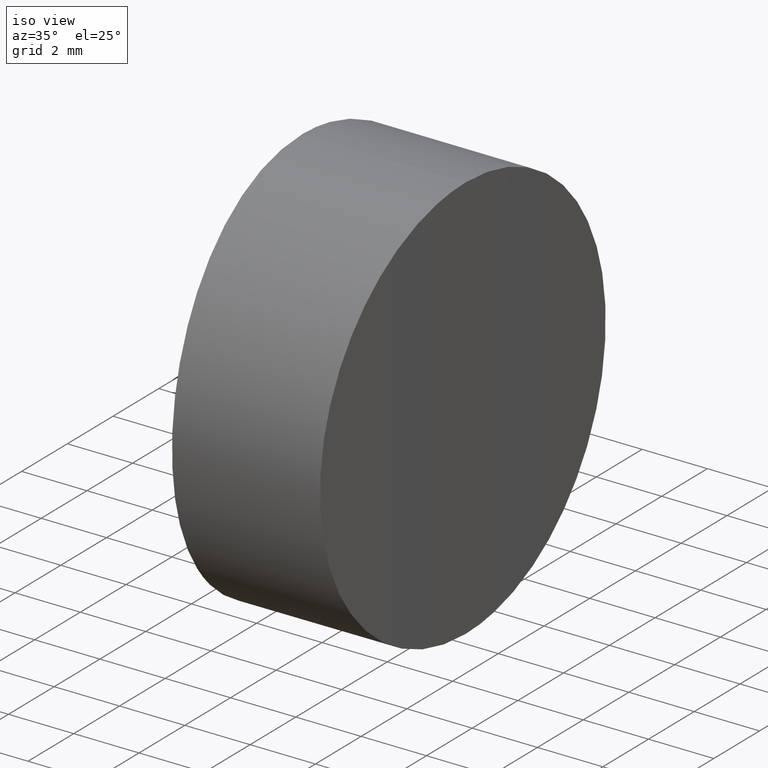
[diagram: clean part render]
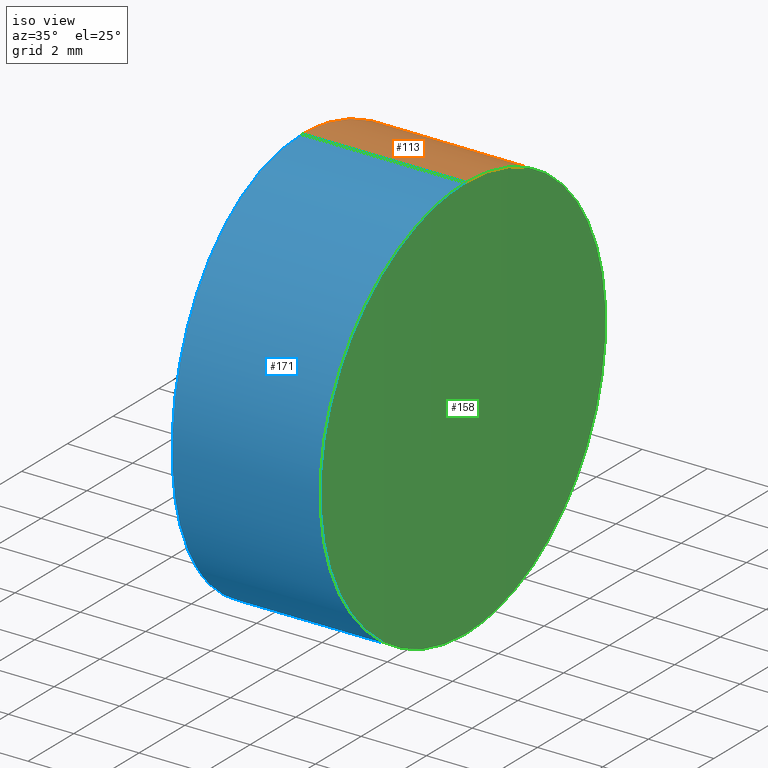
[diagram: same view with three faces highlighted in distinct colors, each labeled with its STEP entity id]
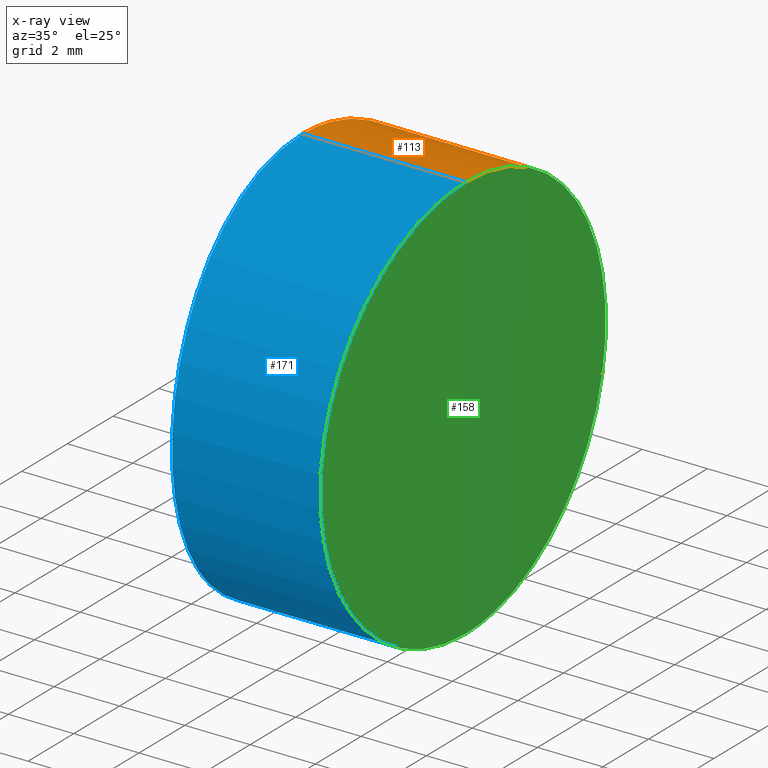
[diagram: x-ray of the same camera — body ghosted, the three highlighted faces saturated]
A machine part, iso view with three faces highlighted in distinct colors.
The next image is the same camera in x-ray (body ghosted, the three faces saturated) — at least one of them is partly hidden behind the body in this view.
Their STEP definitions:

[orange] entity #113 — the highlighted cylindrical surface (partial cylindrical patch) has radius 6.25 mm, axis along (1, -0, -0).
#1 = CARTESIAN_POINT ( 'NONE',  ( 0.1066242266087137763, 3.307313012296388965, 11.55719636348113077 ) ) ;
#3 = CARTESIAN_POINT ( 'NONE',  ( 0.2756230888346870578, 5.307215534080795827, 2.942717741193483061 ) ) ;
#5 = CARTESIAN_POINT ( 'NONE',  ( 0.09461288183620197856, 3.130022284793113840, 0.8248748829874287258 ) ) ;
#6 = B_SPLINE_CURVE_WITH_KNOTS ( 'NONE', 3,
 ( #297, #162, #86, #267, #28, #142, #164, #114, #89, #139, #118, #145, #137, #200, #65, #167, #34, #144, #248, #225, #324, #92, #202, #206, #179, #154, #260, #123, #226, #78, #329, #181, #73, #147, #183, #98, #303, #69, #121, #278, #174, #11 ),
 .UNSPECIFIED., .F., .F.,
 ( 4, 2, 2, 2, 2, 2, 2, 2, 2, 2, 2, 2, 2, 2, 2, 2, 2, 2, 2, 2, 4 ),
 ( 0.000000000000000000, 0.001220495343383211015, 0.001830743015074817173, 0.002440990686766424198, 0.003661486030149641285, 0.004881981373532858805, 0.006102476716916076759, 0.006712724388607684868, 0.007322972060299292978, 0.008543467403682506595, 0.009763962747065724548, 0.01098445809044894250, 0.01159470576214055408, 0.01220495343383216219, 0.01342544877721538188, 0.01464594412059859810, 0.01586643946398181432, 0.01647668713567342416, 0.01708693480736503401, 0.01830743015074825369, 0.01952792549413146991 ),
 .UNSPECIFIED. ) ;
#8 = CARTESIAN_POINT ( 'NONE',  ( 0.1659949999802520504, 4.130033944562728543, 1.541388618476130734 ) ) ;
#10 = CARTESIAN_POINT ( 'NONE',  ( 0.3435147001095088526, 5.921854594423098916, 8.259033701158632113 ) ) ;
#11 = CARTESIAN_POINT ( 'NONE',  ( 4.999999999999976907, -5.204170427930421283E-15, 0.000000000000000000 ) ) ;
#16 = CARTESIAN_POINT ( 'NONE',  ( 8.396108210539845323E-15, 0.4130860730014412896, 2.286988957586610915E-16 ) ) ;
#21 = DIRECTION ( 'NONE',  ( 1.000000000000000000, -0.000000000000000000, -0.000000000000000000 ) ) ;
#24 = CARTESIAN_POINT ( 'NONE',  ( -6.250000000000000000, -5.204170427930421283E-15, 0.000000000000000000 ) ) ;
#28 = CARTESIAN_POINT ( 'NONE',  ( 4.994312911263909527, 1.615180947793990685, 12.29116909028458871 ) ) ;
#30 = CARTESIAN_POINT ( 'NONE',  ( 6.938893903907228378E-15, -4.438766178463325818E-15, 12.50000000000000000 ) ) ;
#31 = CARTESIAN_POINT ( 'NONE',  ( 6.903106761885734188E-15, 0.4130948591030989547, 12.50000000000000000 ) ) ;
#34 = CARTESIAN_POINT ( 'NONE',  ( 4.928264171054427933, 5.694090668111175368, 8.834802782166205404 ) ) ;
#37 = CARTESIAN_POINT ( 'NONE',  ( 0.2158616995286678220, 4.705899044569926026, 2.116875793328691024 ) ) ;
#45 = CARTESIAN_POINT ( 'NONE',  ( -6.250000000000000000, -4.438766178463325818E-15, 12.50000000000000000 ) ) ;
#48 = LINE ( 'NONE', #24, #187 ) ;
#58 = CARTESIAN_POINT ( 'NONE',  ( 0.02432879407562086108, 1.629218021449487130, 12.29795529044067770 ) ) ;
#60 = CARTESIAN_POINT ( 'NONE',  ( 0.004996378150281480073, 0.8215182583297070407, 12.45944621587272749 ) ) ;
#61 = CARTESIAN_POINT ( 'NONE',  ( 0.07364198196778676264, 2.771339476991844908, 0.6330817902046858014 ) ) ;
#63 = AXIS2_PLACEMENT_3D ( 'NONE', #261, #131, #182 ) ;
#64 = VERTEX_POINT ( 'NONE', #214 ) ;
#65 = CARTESIAN_POINT ( 'NONE',  ( 4.935157842332336564, 5.413979064581503131, 9.379397633801435319 ) ) ;
#67 = CARTESIAN_POINT ( 'NONE',  ( 0.2406871432519115117, 4.964473700835698722, 2.430954107092948568 ) ) ;
#68 = ORIENTED_EDGE ( 'NONE', *, *, #271, .T. ) ;
#69 = CARTESIAN_POINT ( 'NONE',  ( 4.991272804248763961, 2.021246492789514626, 0.3218840884410356651 ) ) ;
#72 = ORIENTED_EDGE ( 'NONE', *, *, #247, .T. ) ;
#73 = CARTESIAN_POINT ( 'NONE',  ( 4.967991578292927812, 3.818635297595525113, 1.285205943275607332 ) ) ;
#78 = CARTESIAN_POINT ( 'NONE',  ( 4.945394163859600845, 4.972726870806078558, 2.441968622538004841 ) ) ;
#84 = CARTESIAN_POINT ( 'NONE',  ( 0.01925563739358743254, 1.418344335848754856, 0.1596582932657253373 ) ) ;
#86 = CARTESIAN_POINT ( 'NONE',  ( 4.998870321460144872, 0.8184852456806561705, 12.45952607707375037 ) ) ;
#88 = CARTESIAN_POINT ( 'NONE',  ( 0.2161145303124739070, 4.708626108805606059, 10.38001662973962347 ) ) ;
#89 = CARTESIAN_POINT ( 'NONE',  ( 4.978592816343738292, 3.128907451267059603, 11.67577679866833229 ) ) ;
#90 = B_SPLINE_CURVE_WITH_KNOTS ( 'NONE', 3,
 ( #257, #16, #219, #84, #250, #198, #242, #61, #5, #109, #8, #37, #67, #3, #222, #316, #246, #244, #111, #298, #318, #193, #322, #294, #270, #10, #217, #221, #292, #170, #88, #274, #165, #1, #276, #321, #269, #296, #58, #60, #31, #30 ),
 .UNSPECIFIED., .F., .F.,
 ( 4, 2, 2, 2, 2, 2, 2, 2, 2, 2, 2, 2, 2, 2, 2, 2, 2, 2, 2, 2, 4 ),
 ( 0.009772590515803970118, 0.01099418371872236920, 0.01160498032018156961, 0.01221577692164076828, 0.01343737012455916910, 0.01465896332747756818, 0.01588055653039596726, 0.01649135313185516941, 0.01710214973331437155, 0.01832374293623276890, 0.01954533613915116624, 0.02076692934206956706, 0.02137772594352876573, 0.02198852254498796788, 0.02321011574790636522, 0.02443170895082476257, 0.02565330215374315645, 0.02626409875520235165, 0.02687489535666155380, 0.02809648855957994421, 0.02931808176249833461 ),
 .UNSPECIFIED. ) ;
#92 = CARTESIAN_POINT ( 'NONE',  ( 4.913554362401714393, 6.249999801652589504, 5.837306449244182183 ) ) ;
#96 = EDGE_CURVE ( 'NONE', #299, #148, #48, .T. ) ;
#98 = CARTESIAN_POINT ( 'NONE',  ( 4.983107966137360734, 2.768887129736028907, 0.6430790198273201863 ) ) ;
#109 = CARTESIAN_POINT ( 'NONE',  ( 0.1407103015664853685, 3.808869837697208549, 1.277924719191933622 ) ) ;
#111 = CARTESIAN_POINT ( 'NONE',  ( 0.3583252059185200733, 6.047965350123804207, 4.620818497219325138 ) ) ;
#113 = ADVANCED_FACE ( 'NONE', ( #235 ), #285, .T. ) ;
#114 = CARTESIAN_POINT ( 'NONE',  ( 4.983338064218809649, 2.770082067020261274, 11.86754252863650727 ) ) ;
#117 = EDGE_LOOP ( 'NONE', ( #68, #72, #323, #251 ) ) ;
#118 = CARTESIAN_POINT ( 'NONE',  ( 4.962448123180664972, 4.129606337793049420, 10.95902267144817799 ) ) ;
#121 = CARTESIAN_POINT ( 'NONE',  ( 4.994494165141708741, 1.628304896793462353, 0.2018089264395082350 ) ) ;
#123 = CARTESIAN_POINT ( 'NONE',  ( 4.930221524088732821, 5.617541983827674557, 3.479916868136211150 ) ) ;
#131 = DIRECTION ( 'NONE',  ( 1.000000000000000000, -0.000000000000000000, -0.000000000000000000 ) ) ;
#137 = CARTESIAN_POINT ( 'NONE',  ( 4.945570605464026492, 4.964794413388972316, 10.06863486021563325 ) ) ;
#139 = CARTESIAN_POINT ( 'NONE',  ( 4.968168014237253516, 3.808031038586171313, 11.22272715084252503 ) ) ;
#142 = CARTESIAN_POINT ( 'NONE',  ( 4.991167085856591079, 2.007623238512298514, 12.17232913672585326 ) ) ;
#144 = CARTESIAN_POINT ( 'NONE',  ( 4.922284610285358575, 5.928116489745591799, 8.271244844511970840 ) ) ;
#145 = CARTESIAN_POINT ( 'NONE',  ( 4.951176064800415944, 4.706080574903221070, 10.38295882484594834 ) ) ;
#147 = CARTESIAN_POINT ( 'NONE',  ( 4.975869092026910856, 3.306772038843531103, 0.9424654901211730884 ) ) ;
#148 = VERTEX_POINT ( 'NONE', #241 ) ;
#151 = DIRECTION ( 'NONE',  ( 1.000000000000000000, -0.000000000000000000, -0.000000000000000000 ) ) ;
#154 = CARTESIAN_POINT ( 'NONE',  ( 4.922390331407126673, 5.922328576549611867, 4.242375121257233594 ) ) ;
#162 = CARTESIAN_POINT ( 'NONE',  ( 4.999999999999978684, 0.4126908298085416593, 12.50000000000000533 ) ) ;
#164 = CARTESIAN_POINT ( 'NONE',  ( 4.989343907147685719, 2.202677942603155525, 12.10257375527523038 ) ) ;
#165 = CARTESIAN_POINT ( 'NONE',  ( 0.1414606555378821184, 3.819074287584192096, 11.21445183210819252 ) ) ;
#167 = CARTESIAN_POINT ( 'NONE',  ( 4.930451601935490480, 5.606921548160235247, 9.018885988072691262 ) ) ;
#170 = CARTESIAN_POINT ( 'NONE',  ( 0.2414378568059281638, 4.972083966201013006, 10.05885776642674045 ) ) ;
#174 = CARTESIAN_POINT ( 'NONE',  ( 4.999999999999976907, 0.4126903295097839597, 1.694065894508600678E-18 ) ) ;
#179 = CARTESIAN_POINT ( 'NONE',  ( 4.919243503464356237, 6.041168576902768095, 4.634817147253716740 ) ) ;
#181 = CARTESIAN_POINT ( 'NONE',  ( 4.962386557923943897, 4.132959056135149467, 1.543919649840882036 ) ) ;
#182 = DIRECTION ( 'NONE',  ( 0.000000000000000000, 0.000000000000000000, -1.000000000000000000 ) ) ;
#183 = CARTESIAN_POINT ( 'NONE',  ( 4.978402725925540118, 3.129398536766045513, 0.8360214616970526036 ) ) ;
#187 = VECTOR ( 'NONE', #21, 1000.000000000000000 ) ;
#191 = LINE ( 'NONE', #45, #340 ) ;
#193 = CARTESIAN_POINT ( 'NONE',  ( 0.3828257305944149369, 6.249996462997929214, 6.663134976473110704 ) ) ;
#196 = CARTESIAN_POINT ( 'NONE',  ( 6.938893903907228378E-15, -4.438766178463325818E-15, 12.50000000000000000 ) ) ;
#198 = CARTESIAN_POINT ( 'NONE',  ( 0.03904567890450407613, 2.009010248410231014, 0.3281373339105386200 ) ) ;
#200 = CARTESIAN_POINT ( 'NONE',  ( 4.937691939819520037, 5.307535004852429239, 9.556771251989504279 ) ) ;
#202 = CARTESIAN_POINT ( 'NONE',  ( 4.914684491936140986, 6.209525738619205093, 5.431512309540782901 ) ) ;
#206 = CARTESIAN_POINT ( 'NONE',  ( 4.917912088856221331, 6.090590020503744206, 4.832741660231952174 ) ) ;
#214 = CARTESIAN_POINT ( 'NONE',  ( 4.999999999999976907, -4.438766178463325818E-15, 12.50000000000000000 ) ) ;
#217 = CARTESIAN_POINT ( 'NONE',  ( 0.3354098215465760591, 5.852042039911806270, 8.454087184780481934 ) ) ;
#219 = CARTESIAN_POINT ( 'NONE',  ( 0.004993865505923499384, 0.8191965438438407743, 0.04055009990102494133 ) ) ;
#221 = CARTESIAN_POINT ( 'NONE',  ( 0.3087302805166089459, 5.616914490567282314, 9.021345706636067163 ) ) ;
#222 = CARTESIAN_POINT ( 'NONE',  ( 0.2868520252281807625, 5.413548494469582195, 3.119867796118644065 ) ) ;
#225 = CARTESIAN_POINT ( 'NONE',  ( 4.914685092766309715, 6.209521597560024198, 7.070873815965509124 ) ) ;
#226 = CARTESIAN_POINT ( 'NONE',  ( 4.934967835242724199, 5.425776315718195519, 3.121091743888389836 ) ) ;
#235 = FACE_OUTER_BOUND ( 'NONE', #117, .T. ) ;
#241 = CARTESIAN_POINT ( 'NONE',  ( 4.999999999999976907, -5.204170427930421283E-15, 0.000000000000000000 ) ) ;
#242 = CARTESIAN_POINT ( 'NONE',  ( 0.04710311789368159391, 2.204068077948130533, 0.3979506089032429639 ) ) ;
#244 = CARTESIAN_POINT ( 'NONE',  ( 0.3439857475047795043, 5.927677961578650567, 4.227481124889505004 ) ) ;
#246 = CARTESIAN_POINT ( 'NONE',  ( 0.3174314458988569676, 5.693569526573183381, 3.664051779294871025 ) ) ;
#247 = EDGE_CURVE ( 'NONE', #279, #64, #191, .T. ) ;
#248 = CARTESIAN_POINT ( 'NONE',  ( 4.919062171212663870, 6.048191613798122646, 7.878302949418277024 ) ) ;
#250 = CARTESIAN_POINT ( 'NONE',  ( 0.02513886438214826824, 1.616378308867187252, 0.2091473468669028668 ) ) ;
#251 = ORIENTED_EDGE ( 'NONE', *, *, #96, .F. ) ;
#257 = CARTESIAN_POINT ( 'NONE',  ( 8.437697195808742108E-15, -1.876419484709403194E-31, 2.253504557900801592E-16 ) ) ;
#260 = CARTESIAN_POINT ( 'NONE',  ( 4.924214057264491906, 5.852573187952857303, 4.047320562580419612 ) ) ;
#261 = CARTESIAN_POINT ( 'NONE',  ( -6.250000000000000000, -5.204170427930421283E-15, 6.250000000000000000 ) ) ;
#267 = CARTESIAN_POINT ( 'NONE',  ( 4.995643869074143595, 1.417256300933740665, 12.34059049906308481 ) ) ;
#269 = CARTESIAN_POINT ( 'NONE',  ( 0.06498901591306473213, 2.585981678114223747, 11.94355432397715333 ) ) ;
#270 = CARTESIAN_POINT ( 'NONE',  ( 0.3575085436868826738, 6.040844418379501590, 7.866408662069813928 ) ) ;
#271 = EDGE_CURVE ( 'NONE', #299, #279, #90, .T. ) ;
#274 = CARTESIAN_POINT ( 'NONE',  ( 0.1662482354401662032, 4.133149032654069188, 10.95587677997653842 ) ) ;
#276 = CARTESIAN_POINT ( 'NONE',  ( 0.09543534670040763890, 3.130163720355512158, 11.66353026635727907 ) ) ;
#278 = CARTESIAN_POINT ( 'NONE',  ( 4.998869702809473736, 0.8208762813264807168, 0.04047874389868940520 ) ) ;
#279 = VERTEX_POINT ( 'NONE', #196 ) ;
#285 = CYLINDRICAL_SURFACE ( 'NONE', #63, 6.250000000000000000 ) ;
#292 = CARTESIAN_POINT ( 'NONE',  ( 0.2876673644522193540, 5.425125331843909215, 9.380021019994593701 ) ) ;
#294 = CARTESIAN_POINT ( 'NONE',  ( 0.3634314432637512637, 6.090333757436789952, 7.668378039041986227 ) ) ;
#295 = EDGE_CURVE ( 'NONE', #64, #148, #6, .T. ) ;
#296 = CARTESIAN_POINT ( 'NONE',  ( 0.03857463754648794013, 2.022554222391584666, 12.17766587587150440 ) ) ;
#297 = CARTESIAN_POINT ( 'NONE',  ( 4.999999999999976907, -4.438766178463325818E-15, 12.50000000000000000 ) ) ;
#298 = CARTESIAN_POINT ( 'NONE',  ( 0.3777915393958307666, 6.209452250963997777, 5.428525722679617971 ) ) ;
#299 = VERTEX_POINT ( 'NONE', #309 ) ;
#303 = CARTESIAN_POINT ( 'NONE',  ( 4.985294858695423770, 2.584804047125940141, 0.5559099103250521035 ) ) ;
#309 = CARTESIAN_POINT ( 'NONE',  ( 8.437697195808742108E-15, -1.876419484709403194E-31, 2.253504557900801592E-16 ) ) ;
#316 = CARTESIAN_POINT ( 'NONE',  ( 0.3077233275802382373, 5.606401388316044176, 3.480072493938341172 ) ) ;
#318 = CARTESIAN_POINT ( 'NONE',  ( 0.3828266003980840271, 6.250003536543892402, 5.836972047603499192 ) ) ;
#321 = CARTESIAN_POINT ( 'NONE',  ( 0.07465054315369566706, 2.769960385778523992, 11.85638513859098531 ) ) ;
#322 = CARTESIAN_POINT ( 'NONE',  ( 0.3777926432282701641, 6.209443801628244941, 7.069239787158606347 ) ) ;
#323 = ORIENTED_EDGE ( 'NONE', *, *, #295, .T. ) ;
#324 = CARTESIAN_POINT ( 'NONE',  ( 4.913554351426040689, 6.250000198345957436, 6.662687543025433534 ) ) ;
#329 = CARTESIAN_POINT ( 'NONE',  ( 4.951114503380253495, 4.709022543001965211, 2.120393540379105435 ) ) ;
#340 = VECTOR ( 'NONE', #151, 1000.000000000000000 ) ;

[blue] entity #171 — the highlighted cylindrical surface (partial cylindrical patch) has radius 6.25 mm, axis along (1, -0, -0).
#13 = CARTESIAN_POINT ( 'NONE',  ( 6.938893903907228378E-15, -4.438766178463325818E-15, 12.50000000000000000 ) ) ;
#15 = CARTESIAN_POINT ( 'NONE',  ( 0.3828257305944106070, -6.249996462997938096, 5.836865023526897289 ) ) ;
#17 = CARTESIAN_POINT ( 'NONE',  ( 0.004996378150280787918, -0.8215182583297128138, 0.04055378412727692061 ) ) ;
#21 = DIRECTION ( 'NONE',  ( 1.000000000000000000, -0.000000000000000000, -0.000000000000000000 ) ) ;
#24 = CARTESIAN_POINT ( 'NONE',  ( -6.250000000000000000, -5.204170427930421283E-15, 0.000000000000000000 ) ) ;
#26 = CARTESIAN_POINT ( 'NONE',  ( 4.998869702809474624, -0.8208762813264977032, 12.45952125610130956 ) ) ;
#33 = ORIENTED_EDGE ( 'NONE', *, *, #62, .T. ) ;
#36 = CARTESIAN_POINT ( 'NONE',  ( 4.998870321460145760, -0.8184852456806678278, 0.04047392292625148075 ) ) ;
#38 = CARTESIAN_POINT ( 'NONE',  ( 0.07364198196778566630, -2.771339476991847572, 11.86691820979531542 ) ) ;
#39 = CARTESIAN_POINT ( 'NONE',  ( 4.983338064218810537, -2.770082067020272376, 0.6324574713634916190 ) ) ;
#40 = CARTESIAN_POINT ( 'NONE',  ( 0.3575085436868892241, -6.040844418379513137, 4.633591337930192289 ) ) ;
#42 = CARTESIAN_POINT ( 'NONE',  ( 4.999999999999977796, -0.4126908298085510407, -0.000000000000000000 ) ) ;
#43 = CARTESIAN_POINT ( 'NONE',  ( 0.3777915393958323764, -6.209452250964002218, 7.071474277320389135 ) ) ;
#45 = CARTESIAN_POINT ( 'NONE',  ( -6.250000000000000000, -4.438766178463325818E-15, 12.50000000000000000 ) ) ;
#46 = CARTESIAN_POINT ( 'NONE',  ( 0.3777926432282685543, -6.209443801628257376, 5.430760212841397205 ) ) ;
#48 = LINE ( 'NONE', #24, #187 ) ;
#49 = CARTESIAN_POINT ( 'NONE',  ( 0.02513886438214830640, -1.616378308867191915, 12.29085265313310238 ) ) ;
#51 = CARTESIAN_POINT ( 'NONE',  ( 4.935157842332337452, -5.413979064581513789, 3.120602366198563793 ) ) ;
#54 = CARTESIAN_POINT ( 'NONE',  ( -6.250000000000000000, -5.204170427930421283E-15, 6.250000000000000000 ) ) ;
#56 = CARTESIAN_POINT ( 'NONE',  ( 4.978592816343738292, -3.128907451267073814, 0.8242232013316728167 ) ) ;
#62 = EDGE_CURVE ( 'NONE', #148, #64, #141, .T. ) ;
#64 = VERTEX_POINT ( 'NONE', #214 ) ;
#70 = CARTESIAN_POINT ( 'NONE',  ( 4.994312911263909527, -1.615180947794000899, 0.2088309097154160132 ) ) ;
#71 = CARTESIAN_POINT ( 'NONE',  ( 0.01925563739358690171, -1.418344335848756854, 12.34034170673427688 ) ) ;
#75 = CARTESIAN_POINT ( 'NONE',  ( 4.983107966137360734, -2.768887129736037789, 11.85692098017268314 ) ) ;
#76 = CARTESIAN_POINT ( 'NONE',  ( 0.06498901591306401049, -2.585981678114232629, 0.5564456760228483345 ) ) ;
#77 = CARTESIAN_POINT ( 'NONE',  ( 4.999999999999976019, -0.4126913301079149776, 12.49999999999999645 ) ) ;
#80 = CARTESIAN_POINT ( 'NONE',  ( 4.994494165141707853, -1.628304896793477896, 12.29819107356048669 ) ) ;
#91 = ORIENTED_EDGE ( 'NONE', *, *, #96, .T. ) ;
#93 = CARTESIAN_POINT ( 'NONE',  ( 0.1659949999802544374, -4.130033944562727655, 10.95861138152387682 ) ) ;
#95 = CARTESIAN_POINT ( 'NONE',  ( 0.3828266003980797527, -6.250003536543905724, 6.663027952396508802 ) ) ;
#96 = EDGE_CURVE ( 'NONE', #299, #148, #48, .T. ) ;
#97 = CARTESIAN_POINT ( 'NONE',  ( 4.995643869074142707, -1.417256300933751989, 0.1594095009369125016 ) ) ;
#99 = CARTESIAN_POINT ( 'NONE',  ( 0.07465054315369504256, -2.769960385778533318, 0.6436148614090170250 ) ) ;
#100 = CARTESIAN_POINT ( 'NONE',  ( 4.924214057264491018, -5.852573187952867073, 8.452679437419583053 ) ) ;
#101 = CARTESIAN_POINT ( 'NONE',  ( 4.975869092026911744, -3.306772038843542649, 11.55753450987882580 ) ) ;
#103 = CARTESIAN_POINT ( 'NONE',  ( 4.934967835242724199, -5.425776315718203513, 9.378908256111612829 ) ) ;
#105 = CARTESIAN_POINT ( 'NONE',  ( 4.945570605464026492, -4.964794413388983862, 2.431365139784368967 ) ) ;
#107 = CARTESIAN_POINT ( 'NONE',  ( 4.919243503464358902, -6.041168576902777865, 7.865182852746288589 ) ) ;
#119 = CARTESIAN_POINT ( 'NONE',  ( 0.03904567890450411777, -2.009010248410235011, 12.17186266608946177 ) ) ;
#125 = CARTESIAN_POINT ( 'NONE',  ( 0.3439857475047735091, -5.927677961578656785, 8.272518875110504766 ) ) ;
#126 = CARTESIAN_POINT ( 'NONE',  ( 4.951176064800415944, -4.706080574903230840, 2.117041175154053434 ) ) ;
#127 = CARTESIAN_POINT ( 'NONE',  ( 8.466517824280360617E-15, -0.4130772870866644131, 1.135024149320762947E-16 ) ) ;
#133 = DIRECTION ( 'NONE',  ( 0.000000000000000000, 0.000000000000000000, -1.000000000000000000 ) ) ;
#135 = CARTESIAN_POINT ( 'NONE',  ( 4.962386557923943009, -4.132959056135159237, 10.95608035015912129 ) ) ;
#141 = B_SPLINE_CURVE_WITH_KNOTS ( 'NONE', 3,
 ( #229, #42, #36, #97, #70, #207, #249, #39, #56, #259, #153, #126, #105, #233, #51, #263, #334, #314, #332, #213, #265, #342, #308, #180, #107, #287, #100, #156, #103, #211, #216, #135, #160, #101, #312, #75, #337, #310, #80, #26, #77, #185 ),
 .UNSPECIFIED., .F., .F.,
 ( 4, 2, 2, 2, 2, 2, 2, 2, 2, 2, 2, 2, 2, 2, 2, 2, 2, 2, 2, 2, 4 ),
 ( 0.01952792549413146991, 0.02074842231710424464, 0.02135867072859063201, 0.02196891914007701938, 0.02318941596304979758, 0.02440991278602257231, 0.02563040960899534704, 0.02624065802048173440, 0.02685090643196812177, 0.02807140325494089650, 0.02929190007791367123, 0.03051239690088644596, 0.03112264531237283333, 0.03173289372385922763, 0.03295339054683200236, 0.03417388736980478403, 0.03539438419277755876, 0.03600463260426395307, 0.03661488101575034043, 0.03783537783872312210, 0.03905587466169590377 ),
 .UNSPECIFIED. ) ;
#148 = VERTEX_POINT ( 'NONE', #241 ) ;
#149 = CARTESIAN_POINT ( 'NONE',  ( 0.3087302805166077802, -5.616914490567292972, 3.478654293363939498 ) ) ;
#150 = CARTESIAN_POINT ( 'NONE',  ( 0.2161145303124736849, -4.708626108805615829, 2.119983370260377864 ) ) ;
#151 = DIRECTION ( 'NONE',  ( 1.000000000000000000, -0.000000000000000000, -0.000000000000000000 ) ) ;
#152 = CARTESIAN_POINT ( 'NONE',  ( 0.03857463754648707971, -2.022554222391592216, 0.3223341241284934933 ) ) ;
#153 = CARTESIAN_POINT ( 'NONE',  ( 4.962448123180664972, -4.129606337793060966, 1.540977328551825565 ) ) ;
#156 = CARTESIAN_POINT ( 'NONE',  ( 4.930221524088732821, -5.617541983827686103, 9.020083131863790626 ) ) ;
#157 = DIRECTION ( 'NONE',  ( 1.000000000000000000, -0.000000000000000000, -0.000000000000000000 ) ) ;
#160 = CARTESIAN_POINT ( 'NONE',  ( 4.967991578292928700, -3.818635297595535771, 11.21479405672439356 ) ) ;
#171 = ADVANCED_FACE ( 'NONE', ( #188 ), #288, .T. ) ;
#176 = CARTESIAN_POINT ( 'NONE',  ( 0.3583252059185214611, -6.047965350123814865, 7.879181502780681967 ) ) ;
#180 = CARTESIAN_POINT ( 'NONE',  ( 4.917912088856231989, -6.090590020503753976, 7.667258339768050490 ) ) ;
#185 = CARTESIAN_POINT ( 'NONE',  ( 4.999999999999976907, -4.438766178463325818E-15, 12.50000000000000000 ) ) ;
#187 = VECTOR ( 'NONE', #21, 1000.000000000000000 ) ;
#188 = FACE_OUTER_BOUND ( 'NONE', #277, .T. ) ;
#191 = LINE ( 'NONE', #45, #340 ) ;
#196 = CARTESIAN_POINT ( 'NONE',  ( 6.938893903907228378E-15, -4.438766178463325818E-15, 12.50000000000000000 ) ) ;
#199 = B_SPLINE_CURVE_WITH_KNOTS ( 'NONE', 3,
 ( #13, #286, #328, #71, #49, #119, #304, #38, #282, #325, #93, #210, #284, #205, #300, #252, #228, #125, #176, #43, #95, #15, #46, #280, #40, #333, #232, #149, #255, #307, #150, #256, #230, #331, #208, #99, #76, #152, #258, #17, #127, #234 ),
 .UNSPECIFIED., .F., .F.,
 ( 4, 2, 2, 2, 2, 2, 2, 2, 2, 2, 2, 2, 2, 2, 2, 2, 2, 2, 2, 2, 4 ),
 ( -0.009772485018447484018, -0.008550917797556763580, -0.007940134187111404229, -0.007329350576666043143, -0.006107783355775321839, -0.004886216134884599667, -0.003664648913993878362, -0.003053865303548519879, -0.002443081693103160527, -0.001221514472212446162, 5.274867826733642406E-08, 0.001221619969568980835, 0.001832403580014336716, 0.002443187190459692598, 0.003664754411350406096, 0.004886321632241119595, 0.006107888853131834828, 0.006718672463577192444, 0.007329456074022546591, 0.008551023294913258355, 0.009772590515803970118 ),
 .UNSPECIFIED. ) ;
#205 = CARTESIAN_POINT ( 'NONE',  ( 0.2756230888346872243, -5.307215534080800268, 9.557282258806530706 ) ) ;
#207 = CARTESIAN_POINT ( 'NONE',  ( 4.991167085856590191, -2.007623238512308284, 0.3276708632741501259 ) ) ;
#208 = CARTESIAN_POINT ( 'NONE',  ( 0.09543534670040704215, -3.130163720355521040, 0.8364697336427239227 ) ) ;
#210 = CARTESIAN_POINT ( 'NONE',  ( 0.2158616995286703755, -4.705899044569928691, 10.38312420667131875 ) ) ;
#211 = CARTESIAN_POINT ( 'NONE',  ( 4.945394163859600845, -4.972726870806089217, 10.05803137746199916 ) ) ;
#213 = CARTESIAN_POINT ( 'NONE',  ( 4.914685092766312380, -6.209521597560033968, 5.429126184034490876 ) ) ;
#214 = CARTESIAN_POINT ( 'NONE',  ( 4.999999999999976907, -4.438766178463325818E-15, 12.50000000000000000 ) ) ;
#216 = CARTESIAN_POINT ( 'NONE',  ( 4.951114503380252607, -4.709022543001973204, 10.37960645962089856 ) ) ;
#227 = AXIS2_PLACEMENT_3D ( 'NONE', #54, #157, #133 ) ;
#228 = CARTESIAN_POINT ( 'NONE',  ( 0.3174314458988509724, -5.693569526573190487, 8.835948220705141409 ) ) ;
#229 = CARTESIAN_POINT ( 'NONE',  ( 4.999999999999976907, -5.204170427930421283E-15, 0.000000000000000000 ) ) ;
#230 = CARTESIAN_POINT ( 'NONE',  ( 0.1414606555378817576, -3.819074287584202754, 1.285548167891808369 ) ) ;
#232 = CARTESIAN_POINT ( 'NONE',  ( 0.3354098215465750599, -5.852042039911818705, 4.045912815219525172 ) ) ;
#233 = CARTESIAN_POINT ( 'NONE',  ( 4.937691939819520925, -5.307535004852441674, 2.943228748010500606 ) ) ;
#234 = CARTESIAN_POINT ( 'NONE',  ( 8.437697195808742108E-15, -1.876419484709403194E-31, 2.253504557900801592E-16 ) ) ;
#241 = CARTESIAN_POINT ( 'NONE',  ( 4.999999999999976907, -5.204170427930421283E-15, 0.000000000000000000 ) ) ;
#247 = EDGE_CURVE ( 'NONE', #279, #64, #191, .T. ) ;
#249 = CARTESIAN_POINT ( 'NONE',  ( 4.989343907147683943, -2.202677942603164851, 0.3974262447247741137 ) ) ;
#252 = CARTESIAN_POINT ( 'NONE',  ( 0.3077233275802390700, -5.606401388316049506, 9.019927506061669931 ) ) ;
#255 = CARTESIAN_POINT ( 'NONE',  ( 0.2876673644522211304, -5.425125331843922538, 3.119978980005408520 ) ) ;
#256 = CARTESIAN_POINT ( 'NONE',  ( 0.1662482354401659534, -4.133149032654082511, 1.544123220023460030 ) ) ;
#258 = CARTESIAN_POINT ( 'NONE',  ( 0.02432879407562030943, -1.629218021449494458, 0.2020447095593234932 ) ) ;
#259 = CARTESIAN_POINT ( 'NONE',  ( 4.968168014237253516, -3.808031038586185524, 1.277272849157480294 ) ) ;
#263 = CARTESIAN_POINT ( 'NONE',  ( 4.930451601935492256, -5.606921548160245017, 3.481114011927308738 ) ) ;
#265 = CARTESIAN_POINT ( 'NONE',  ( 4.913554351426038025, -6.250000198345965430, 5.837312456974560249 ) ) ;
#273 = ORIENTED_EDGE ( 'NONE', *, *, #326, .T. ) ;
#277 = EDGE_LOOP ( 'NONE', ( #330, #273, #91, #33 ) ) ;
#279 = VERTEX_POINT ( 'NONE', #196 ) ;
#280 = CARTESIAN_POINT ( 'NONE',  ( 0.3634314432637497094, -6.090333757436803275, 4.831621960958019102 ) ) ;
#282 = CARTESIAN_POINT ( 'NONE',  ( 0.09461288183620379655, -3.130022284793115617, 11.67512511701257694 ) ) ;
#284 = CARTESIAN_POINT ( 'NONE',  ( 0.2406871432519115950, -4.964473700835701386, 10.06904589290706298 ) ) ;
#286 = CARTESIAN_POINT ( 'NONE',  ( 6.974363408573502204E-15, -0.4130860730014506710, 12.50000000000000178 ) ) ;
#287 = CARTESIAN_POINT ( 'NONE',  ( 4.922390331407127562, -5.922328576549619861, 8.257624878742772623 ) ) ;
#288 = CYLINDRICAL_SURFACE ( 'NONE', #227, 6.250000000000000000 ) ;
#299 = VERTEX_POINT ( 'NONE', #309 ) ;
#300 = CARTESIAN_POINT ( 'NONE',  ( 0.2868520252281814842, -5.413548494469587524, 9.380132203881364816 ) ) ;
#304 = CARTESIAN_POINT ( 'NONE',  ( 0.04710311789368050450, -2.204068077948134530, 12.10204939109675770 ) ) ;
#307 = CARTESIAN_POINT ( 'NONE',  ( 0.2414378568059300234, -4.972083966201026328, 2.441142233573262654 ) ) ;
#308 = CARTESIAN_POINT ( 'NONE',  ( 4.914684491936150756, -6.209525738619214863, 7.068487690459218875 ) ) ;
#309 = CARTESIAN_POINT ( 'NONE',  ( 8.437697195808742108E-15, -1.876419484709403194E-31, 2.253504557900801592E-16 ) ) ;
#310 = CARTESIAN_POINT ( 'NONE',  ( 4.991272804248763961, -2.021246492789519955, 12.17811591155896700 ) ) ;
#312 = CARTESIAN_POINT ( 'NONE',  ( 4.978402725925539229, -3.129398536766052619, 11.66397853830294729 ) ) ;
#314 = CARTESIAN_POINT ( 'NONE',  ( 4.922284610285361239, -5.928116489745602458, 4.228755155488026496 ) ) ;
#325 = CARTESIAN_POINT ( 'NONE',  ( 0.1407103015664872003, -3.808869837697208549, 11.22207528080807215 ) ) ;
#326 = EDGE_CURVE ( 'NONE', #279, #299, #199, .T. ) ;
#328 = CARTESIAN_POINT ( 'NONE',  ( 0.004993865505922950344, -0.8191965438438439939, 12.45944990009897602 ) ) ;
#330 = ORIENTED_EDGE ( 'NONE', *, *, #247, .F. ) ;
#331 = CARTESIAN_POINT ( 'NONE',  ( 0.1066242266087132212, -3.307313012296397847, 0.9428036365188691148 ) ) ;
#332 = CARTESIAN_POINT ( 'NONE',  ( 4.919062171212663870, -6.048191613798128863, 4.621697050581720312 ) ) ;
#333 = CARTESIAN_POINT ( 'NONE',  ( 0.3435147001095155694, -5.921854594423110463, 4.240966298841371440 ) ) ;
#334 = CARTESIAN_POINT ( 'NONE',  ( 4.928264171054427933, -5.694090668111186027, 3.665197217833797705 ) ) ;
#337 = CARTESIAN_POINT ( 'NONE',  ( 4.985294858695424658, -2.584804047125946802, 11.94409008967495289 ) ) ;
#340 = VECTOR ( 'NONE', #151, 1000.000000000000000 ) ;
#342 = CARTESIAN_POINT ( 'NONE',  ( 4.913554362401709952, -6.249999801652600162, 6.662693550755816041 ) ) ;

[green] entity #158 — the highlighted cylindrical surface (partial cylindrical patch) has radius 225.98 mm, axis along (-0, -0, -1).
#6 = B_SPLINE_CURVE_WITH_KNOTS ( 'NONE', 3,
 ( #297, #162, #86, #267, #28, #142, #164, #114, #89, #139, #118, #145, #137, #200, #65, #167, #34, #144, #248, #225, #324, #92, #202, #206, #179, #154, #260, #123, #226, #78, #329, #181, #73, #147, #183, #98, #303, #69, #121, #278, #174, #11 ),
 .UNSPECIFIED., .F., .F.,
 ( 4, 2, 2, 2, 2, 2, 2, 2, 2, 2, 2, 2, 2, 2, 2, 2, 2, 2, 2, 2, 4 ),
 ( 0.000000000000000000, 0.001220495343383211015, 0.001830743015074817173, 0.002440990686766424198, 0.003661486030149641285, 0.004881981373532858805, 0.006102476716916076759, 0.006712724388607684868, 0.007322972060299292978, 0.008543467403682506595, 0.009763962747065724548, 0.01098445809044894250, 0.01159470576214055408, 0.01220495343383216219, 0.01342544877721538188, 0.01464594412059859810, 0.01586643946398181432, 0.01647668713567342416, 0.01708693480736503401, 0.01830743015074825369, 0.01952792549413146991 ),
 .UNSPECIFIED. ) ;
#11 = CARTESIAN_POINT ( 'NONE',  ( 4.999999999999976907, -5.204170427930421283E-15, 0.000000000000000000 ) ) ;
#12 = EDGE_LOOP ( 'NONE', ( #143, #146 ) ) ;
#19 = FACE_OUTER_BOUND ( 'NONE', #12, .T. ) ;
#26 = CARTESIAN_POINT ( 'NONE',  ( 4.998869702809474624, -0.8208762813264977032, 12.45952125610130956 ) ) ;
#28 = CARTESIAN_POINT ( 'NONE',  ( 4.994312911263909527, 1.615180947793990685, 12.29116909028458871 ) ) ;
#34 = CARTESIAN_POINT ( 'NONE',  ( 4.928264171054427933, 5.694090668111175368, 8.834802782166205404 ) ) ;
#36 = CARTESIAN_POINT ( 'NONE',  ( 4.998870321460145760, -0.8184852456806678278, 0.04047392292625148075 ) ) ;
#39 = CARTESIAN_POINT ( 'NONE',  ( 4.983338064218810537, -2.770082067020272376, 0.6324574713634916190 ) ) ;
#42 = CARTESIAN_POINT ( 'NONE',  ( 4.999999999999977796, -0.4126908298085510407, -0.000000000000000000 ) ) ;
#51 = CARTESIAN_POINT ( 'NONE',  ( 4.935157842332337452, -5.413979064581513789, 3.120602366198563793 ) ) ;
#56 = CARTESIAN_POINT ( 'NONE',  ( 4.978592816343738292, -3.128907451267073814, 0.8242232013316728167 ) ) ;
#62 = EDGE_CURVE ( 'NONE', #148, #64, #141, .T. ) ;
#64 = VERTEX_POINT ( 'NONE', #214 ) ;
#65 = CARTESIAN_POINT ( 'NONE',  ( 4.935157842332336564, 5.413979064581503131, 9.379397633801435319 ) ) ;
#69 = CARTESIAN_POINT ( 'NONE',  ( 4.991272804248763961, 2.021246492789514626, 0.3218840884410356651 ) ) ;
#70 = CARTESIAN_POINT ( 'NONE',  ( 4.994312911263909527, -1.615180947794000899, 0.2088309097154160132 ) ) ;
#73 = CARTESIAN_POINT ( 'NONE',  ( 4.967991578292927812, 3.818635297595525113, 1.285205943275607332 ) ) ;
#75 = CARTESIAN_POINT ( 'NONE',  ( 4.983107966137360734, -2.768887129736037789, 11.85692098017268314 ) ) ;
#77 = CARTESIAN_POINT ( 'NONE',  ( 4.999999999999976019, -0.4126913301079149776, 12.49999999999999645 ) ) ;
#78 = CARTESIAN_POINT ( 'NONE',  ( 4.945394163859600845, 4.972726870806078558, 2.441968622538004841 ) ) ;
#80 = CARTESIAN_POINT ( 'NONE',  ( 4.994494165141707853, -1.628304896793477896, 12.29819107356048669 ) ) ;
#81 = DIRECTION ( 'NONE',  ( -0.000000000000000000, -0.000000000000000000, -1.000000000000000000 ) ) ;
#86 = CARTESIAN_POINT ( 'NONE',  ( 4.998870321460144872, 0.8184852456806561705, 12.45952607707375037 ) ) ;
#89 = CARTESIAN_POINT ( 'NONE',  ( 4.978592816343738292, 3.128907451267059603, 11.67577679866833229 ) ) ;
#92 = CARTESIAN_POINT ( 'NONE',  ( 4.913554362401714393, 6.249999801652589504, 5.837306449244182183 ) ) ;
#97 = CARTESIAN_POINT ( 'NONE',  ( 4.995643869074142707, -1.417256300933751989, 0.1594095009369125016 ) ) ;
#98 = CARTESIAN_POINT ( 'NONE',  ( 4.983107966137360734, 2.768887129736028907, 0.6430790198273201863 ) ) ;
#100 = CARTESIAN_POINT ( 'NONE',  ( 4.924214057264491018, -5.852573187952867073, 8.452679437419583053 ) ) ;
#101 = CARTESIAN_POINT ( 'NONE',  ( 4.975869092026911744, -3.306772038843542649, 11.55753450987882580 ) ) ;
#103 = CARTESIAN_POINT ( 'NONE',  ( 4.934967835242724199, -5.425776315718203513, 9.378908256111612829 ) ) ;
#105 = CARTESIAN_POINT ( 'NONE',  ( 4.945570605464026492, -4.964794413388983862, 2.431365139784368967 ) ) ;
#107 = CARTESIAN_POINT ( 'NONE',  ( 4.919243503464358902, -6.041168576902777865, 7.865182852746288589 ) ) ;
#114 = CARTESIAN_POINT ( 'NONE',  ( 4.983338064218809649, 2.770082067020261274, 11.86754252863650727 ) ) ;
#118 = CARTESIAN_POINT ( 'NONE',  ( 4.962448123180664972, 4.129606337793049420, 10.95902267144817799 ) ) ;
#121 = CARTESIAN_POINT ( 'NONE',  ( 4.994494165141708741, 1.628304896793462353, 0.2018089264395082350 ) ) ;
#123 = CARTESIAN_POINT ( 'NONE',  ( 4.930221524088732821, 5.617541983827674557, 3.479916868136211150 ) ) ;
#126 = CARTESIAN_POINT ( 'NONE',  ( 4.951176064800415944, -4.706080574903230840, 2.117041175154053434 ) ) ;
#135 = CARTESIAN_POINT ( 'NONE',  ( 4.962386557923943009, -4.132959056135159237, 10.95608035015912129 ) ) ;
#137 = CARTESIAN_POINT ( 'NONE',  ( 4.945570605464026492, 4.964794413388972316, 10.06863486021563325 ) ) ;
#139 = CARTESIAN_POINT ( 'NONE',  ( 4.968168014237253516, 3.808031038586171313, 11.22272715084252503 ) ) ;
#141 = B_SPLINE_CURVE_WITH_KNOTS ( 'NONE', 3,
 ( #229, #42, #36, #97, #70, #207, #249, #39, #56, #259, #153, #126, #105, #233, #51, #263, #334, #314, #332, #213, #265, #342, #308, #180, #107, #287, #100, #156, #103, #211, #216, #135, #160, #101, #312, #75, #337, #310, #80, #26, #77, #185 ),
 .UNSPECIFIED., .F., .F.,
 ( 4, 2, 2, 2, 2, 2, 2, 2, 2, 2, 2, 2, 2, 2, 2, 2, 2, 2, 2, 2, 4 ),
 ( 0.01952792549413146991, 0.02074842231710424464, 0.02135867072859063201, 0.02196891914007701938, 0.02318941596304979758, 0.02440991278602257231, 0.02563040960899534704, 0.02624065802048173440, 0.02685090643196812177, 0.02807140325494089650, 0.02929190007791367123, 0.03051239690088644596, 0.03112264531237283333, 0.03173289372385922763, 0.03295339054683200236, 0.03417388736980478403, 0.03539438419277755876, 0.03600463260426395307, 0.03661488101575034043, 0.03783537783872312210, 0.03905587466169590377 ),
 .UNSPECIFIED. ) ;
#142 = CARTESIAN_POINT ( 'NONE',  ( 4.991167085856591079, 2.007623238512298514, 12.17232913672585326 ) ) ;
#143 = ORIENTED_EDGE ( 'NONE', *, *, #62, .F. ) ;
#144 = CARTESIAN_POINT ( 'NONE',  ( 4.922284610285358575, 5.928116489745591799, 8.271244844511970840 ) ) ;
#145 = CARTESIAN_POINT ( 'NONE',  ( 4.951176064800415944, 4.706080574903221070, 10.38295882484594834 ) ) ;
#146 = ORIENTED_EDGE ( 'NONE', *, *, #295, .F. ) ;
#147 = CARTESIAN_POINT ( 'NONE',  ( 4.975869092026910856, 3.306772038843531103, 0.9424654901211730884 ) ) ;
#148 = VERTEX_POINT ( 'NONE', #241 ) ;
#153 = CARTESIAN_POINT ( 'NONE',  ( 4.962448123180664972, -4.129606337793060966, 1.540977328551825565 ) ) ;
#154 = CARTESIAN_POINT ( 'NONE',  ( 4.922390331407126673, 5.922328576549611867, 4.242375121257233594 ) ) ;
#156 = CARTESIAN_POINT ( 'NONE',  ( 4.930221524088732821, -5.617541983827686103, 9.020083131863790626 ) ) ;
#158 = ADVANCED_FACE ( 'NONE', ( #19 ), #290, .T. ) ;
#160 = CARTESIAN_POINT ( 'NONE',  ( 4.967991578292928700, -3.818635297595535771, 11.21479405672439356 ) ) ;
#162 = CARTESIAN_POINT ( 'NONE',  ( 4.999999999999978684, 0.4126908298085416593, 12.50000000000000533 ) ) ;
#164 = CARTESIAN_POINT ( 'NONE',  ( 4.989343907147685719, 2.202677942603155525, 12.10257375527523038 ) ) ;
#167 = CARTESIAN_POINT ( 'NONE',  ( 4.930451601935490480, 5.606921548160235247, 9.018885988072691262 ) ) ;
#174 = CARTESIAN_POINT ( 'NONE',  ( 4.999999999999976907, 0.4126903295097839597, 1.694065894508600678E-18 ) ) ;
#179 = CARTESIAN_POINT ( 'NONE',  ( 4.919243503464356237, 6.041168576902768095, 4.634817147253716740 ) ) ;
#180 = CARTESIAN_POINT ( 'NONE',  ( 4.917912088856231989, -6.090590020503753976, 7.667258339768050490 ) ) ;
#181 = CARTESIAN_POINT ( 'NONE',  ( 4.962386557923943897, 4.132959056135149467, 1.543919649840882036 ) ) ;
#183 = CARTESIAN_POINT ( 'NONE',  ( 4.978402725925540118, 3.129398536766045513, 0.8360214616970526036 ) ) ;
#185 = CARTESIAN_POINT ( 'NONE',  ( 4.999999999999976907, -4.438766178463325818E-15, 12.50000000000000000 ) ) ;
#200 = CARTESIAN_POINT ( 'NONE',  ( 4.937691939819520037, 5.307535004852429239, 9.556771251989504279 ) ) ;
#202 = CARTESIAN_POINT ( 'NONE',  ( 4.914684491936140986, 6.209525738619205093, 5.431512309540782901 ) ) ;
#206 = CARTESIAN_POINT ( 'NONE',  ( 4.917912088856221331, 6.090590020503744206, 4.832741660231952174 ) ) ;
#207 = CARTESIAN_POINT ( 'NONE',  ( 4.991167085856590191, -2.007623238512308284, 0.3276708632741501259 ) ) ;
#211 = CARTESIAN_POINT ( 'NONE',  ( 4.945394163859600845, -4.972726870806089217, 10.05803137746199916 ) ) ;
#213 = CARTESIAN_POINT ( 'NONE',  ( 4.914685092766312380, -6.209521597560033968, 5.429126184034490876 ) ) ;
#214 = CARTESIAN_POINT ( 'NONE',  ( 4.999999999999976907, -4.438766178463325818E-15, 12.50000000000000000 ) ) ;
#216 = CARTESIAN_POINT ( 'NONE',  ( 4.951114503380252607, -4.709022543001973204, 10.37960645962089856 ) ) ;
#225 = CARTESIAN_POINT ( 'NONE',  ( 4.914685092766309715, 6.209521597560024198, 7.070873815965509124 ) ) ;
#226 = CARTESIAN_POINT ( 'NONE',  ( 4.934967835242724199, 5.425776315718195519, 3.121091743888389836 ) ) ;
#229 = CARTESIAN_POINT ( 'NONE',  ( 4.999999999999976907, -5.204170427930421283E-15, 0.000000000000000000 ) ) ;
#233 = CARTESIAN_POINT ( 'NONE',  ( 4.937691939819520925, -5.307535004852441674, 2.943228748010500606 ) ) ;
#238 = DIRECTION ( 'NONE',  ( -1.000000000000000000, 0.000000000000000000, 0.000000000000000000 ) ) ;
#241 = CARTESIAN_POINT ( 'NONE',  ( 4.999999999999976907, -5.204170427930421283E-15, 0.000000000000000000 ) ) ;
#245 = AXIS2_PLACEMENT_3D ( 'NONE', #305, #81, #238 ) ;
#248 = CARTESIAN_POINT ( 'NONE',  ( 4.919062171212663870, 6.048191613798122646, 7.878302949418277024 ) ) ;
#249 = CARTESIAN_POINT ( 'NONE',  ( 4.989343907147683943, -2.202677942603164851, 0.3974262447247741137 ) ) ;
#259 = CARTESIAN_POINT ( 'NONE',  ( 4.968168014237253516, -3.808031038586185524, 1.277272849157480294 ) ) ;
#260 = CARTESIAN_POINT ( 'NONE',  ( 4.924214057264491906, 5.852573187952857303, 4.047320562580419612 ) ) ;
#263 = CARTESIAN_POINT ( 'NONE',  ( 4.930451601935492256, -5.606921548160245017, 3.481114011927308738 ) ) ;
#265 = CARTESIAN_POINT ( 'NONE',  ( 4.913554351426038025, -6.250000198345965430, 5.837312456974560249 ) ) ;
#267 = CARTESIAN_POINT ( 'NONE',  ( 4.995643869074143595, 1.417256300933740665, 12.34059049906308481 ) ) ;
#278 = CARTESIAN_POINT ( 'NONE',  ( 4.998869702809473736, 0.8208762813264807168, 0.04047874389868940520 ) ) ;
#287 = CARTESIAN_POINT ( 'NONE',  ( 4.922390331407127562, -5.922328576549619861, 8.257624878742772623 ) ) ;
#290 = CYLINDRICAL_SURFACE ( 'NONE', #245, 225.9799999999999329 ) ;
#295 = EDGE_CURVE ( 'NONE', #64, #148, #6, .T. ) ;
#297 = CARTESIAN_POINT ( 'NONE',  ( 4.999999999999976907, -4.438766178463325818E-15, 12.50000000000000000 ) ) ;
#303 = CARTESIAN_POINT ( 'NONE',  ( 4.985294858695423770, 2.584804047125940141, 0.5559099103250521035 ) ) ;
#305 = CARTESIAN_POINT ( 'NONE',  ( -220.9799999999999898, 0.000000000000000000, 12.50000000000000000 ) ) ;
#308 = CARTESIAN_POINT ( 'NONE',  ( 4.914684491936150756, -6.209525738619214863, 7.068487690459218875 ) ) ;
#310 = CARTESIAN_POINT ( 'NONE',  ( 4.991272804248763961, -2.021246492789519955, 12.17811591155896700 ) ) ;
#312 = CARTESIAN_POINT ( 'NONE',  ( 4.978402725925539229, -3.129398536766052619, 11.66397853830294729 ) ) ;
#314 = CARTESIAN_POINT ( 'NONE',  ( 4.922284610285361239, -5.928116489745602458, 4.228755155488026496 ) ) ;
#324 = CARTESIAN_POINT ( 'NONE',  ( 4.913554351426040689, 6.250000198345957436, 6.662687543025433534 ) ) ;
#329 = CARTESIAN_POINT ( 'NONE',  ( 4.951114503380253495, 4.709022543001965211, 2.120393540379105435 ) ) ;
#332 = CARTESIAN_POINT ( 'NONE',  ( 4.919062171212663870, -6.048191613798128863, 4.621697050581720312 ) ) ;
#334 = CARTESIAN_POINT ( 'NONE',  ( 4.928264171054427933, -5.694090668111186027, 3.665197217833797705 ) ) ;
#337 = CARTESIAN_POINT ( 'NONE',  ( 4.985294858695424658, -2.584804047125946802, 11.94409008967495289 ) ) ;
#342 = CARTESIAN_POINT ( 'NONE',  ( 4.913554362401709952, -6.249999801652600162, 6.662693550755816041 ) ) ;